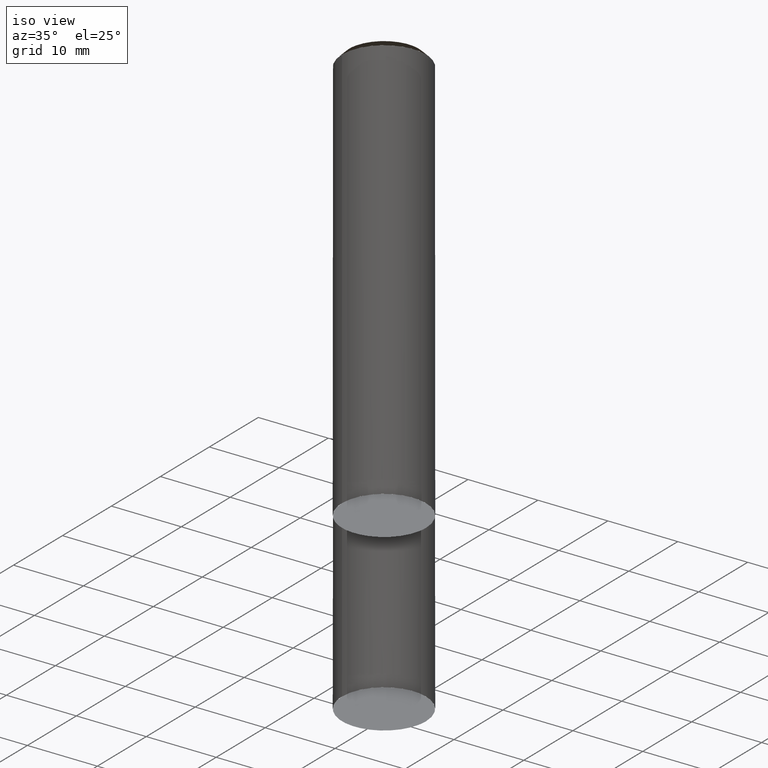
[diagram: clean part render]
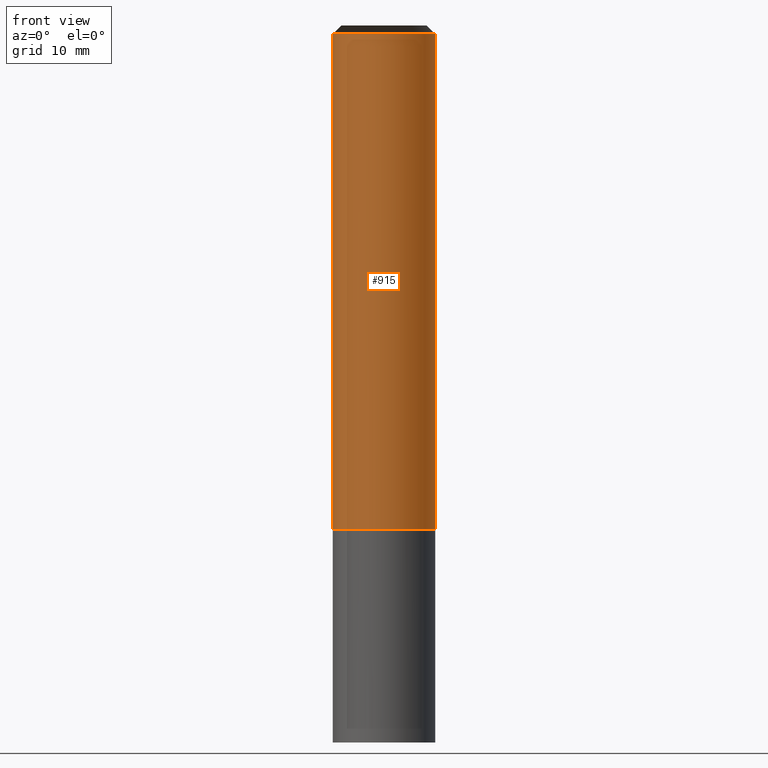
[diagram: tour spotlight — one face highlighted and labeled with its STEP entity id]
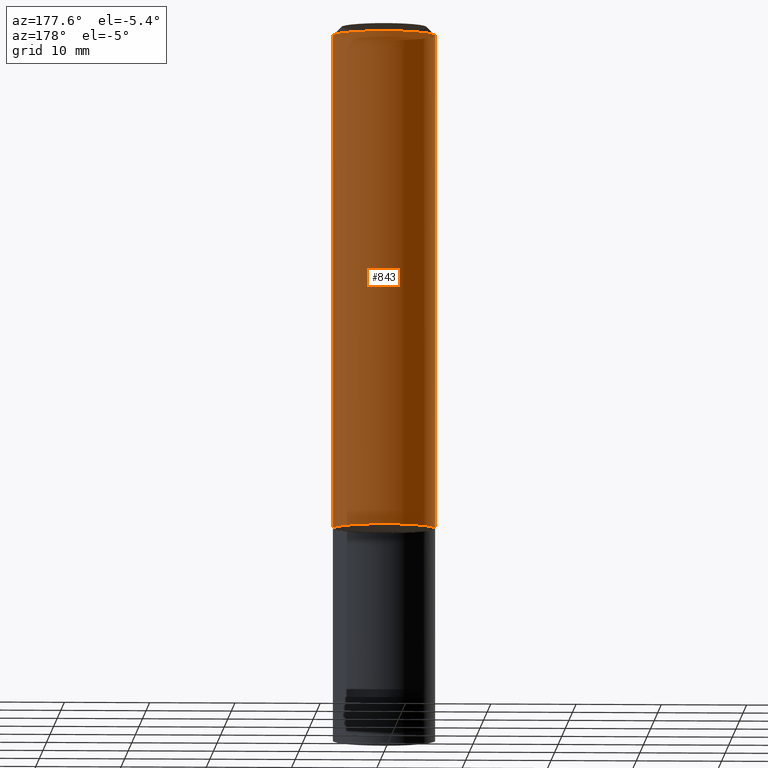
[diagram: tour spotlight — one face highlighted and labeled with its STEP entity id]
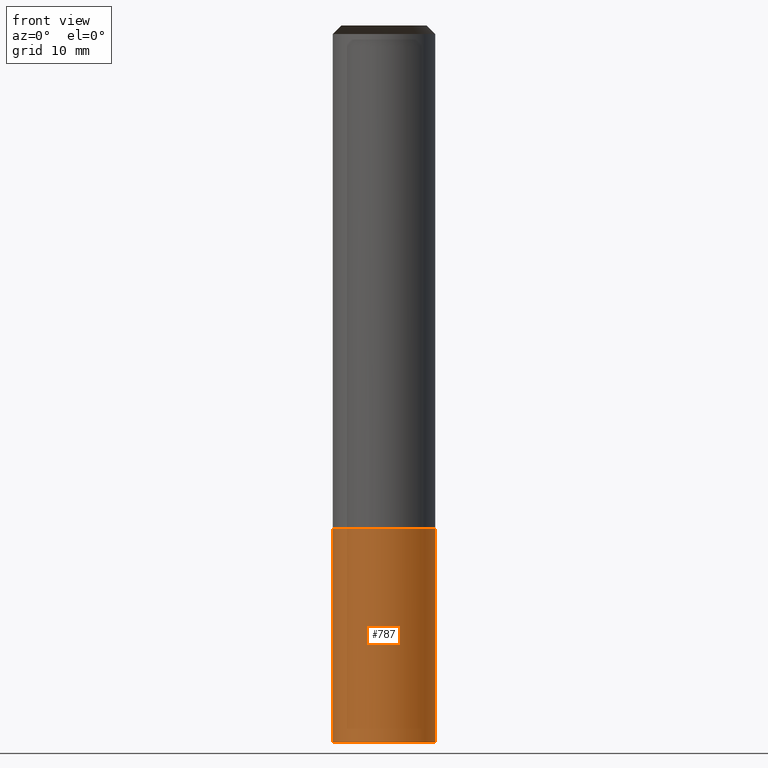
[diagram: tour spotlight — one face highlighted and labeled with its STEP entity id]
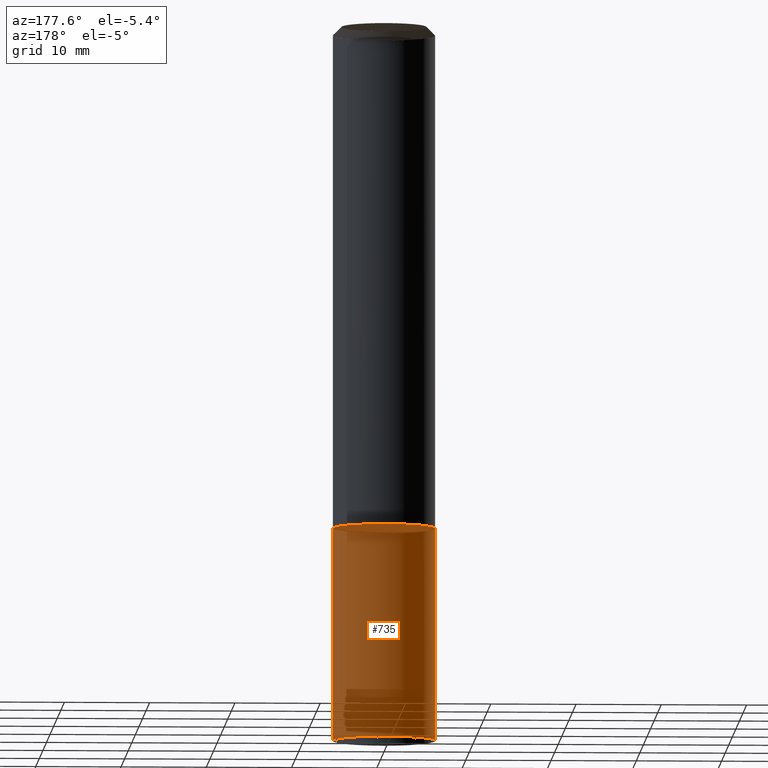
[diagram: tour spotlight — one face highlighted and labeled with its STEP entity id]
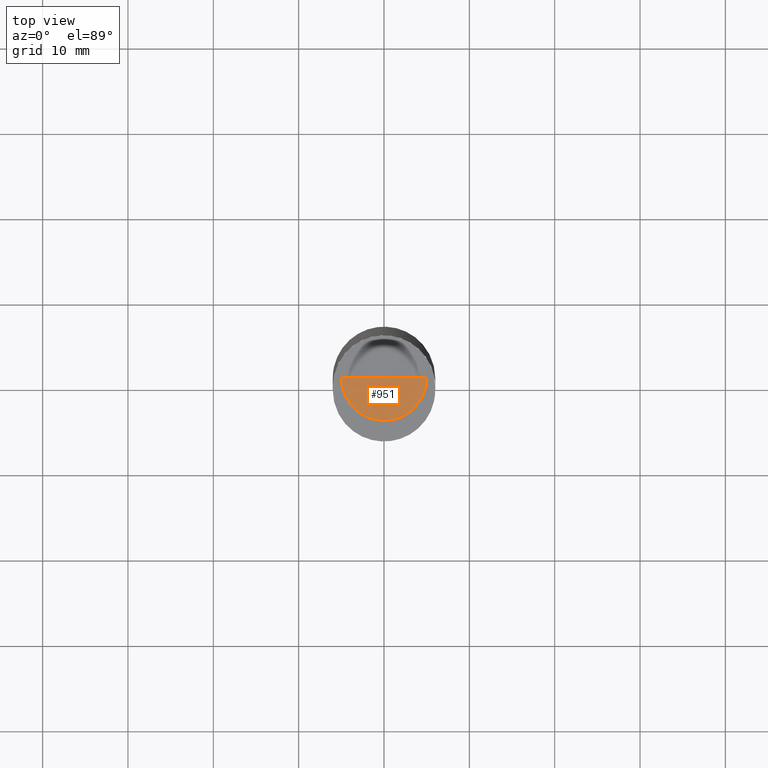
[diagram: tour spotlight — one face highlighted and labeled with its STEP entity id]
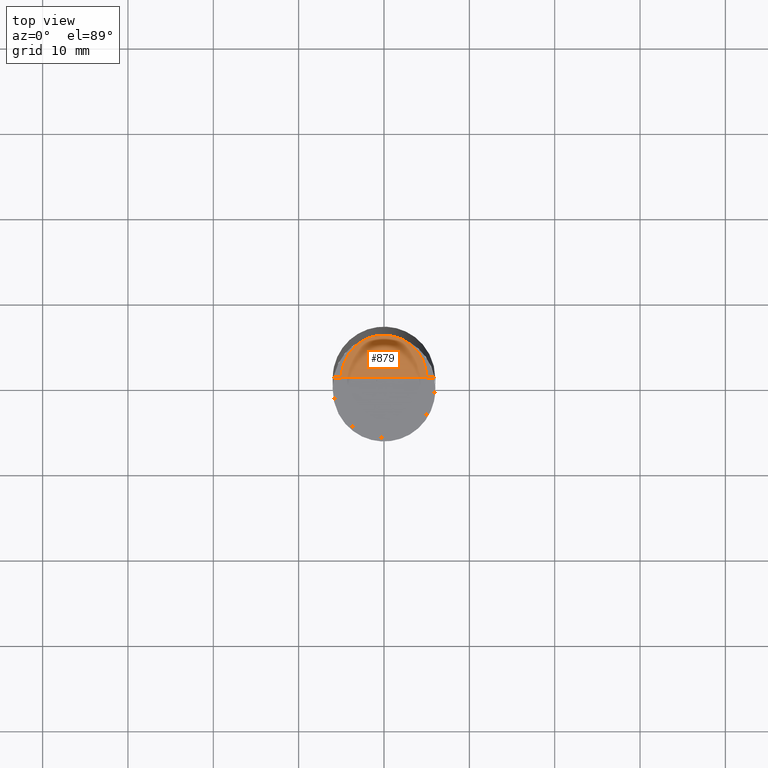
[diagram: tour spotlight — one face highlighted and labeled with its STEP entity id]
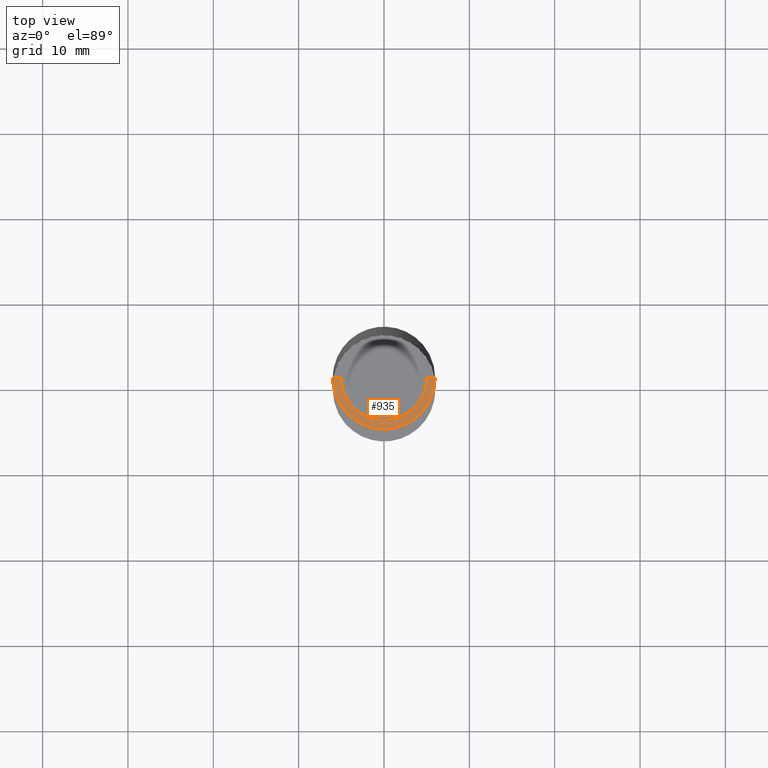
[diagram: tour spotlight — one face highlighted and labeled with its STEP entity id]
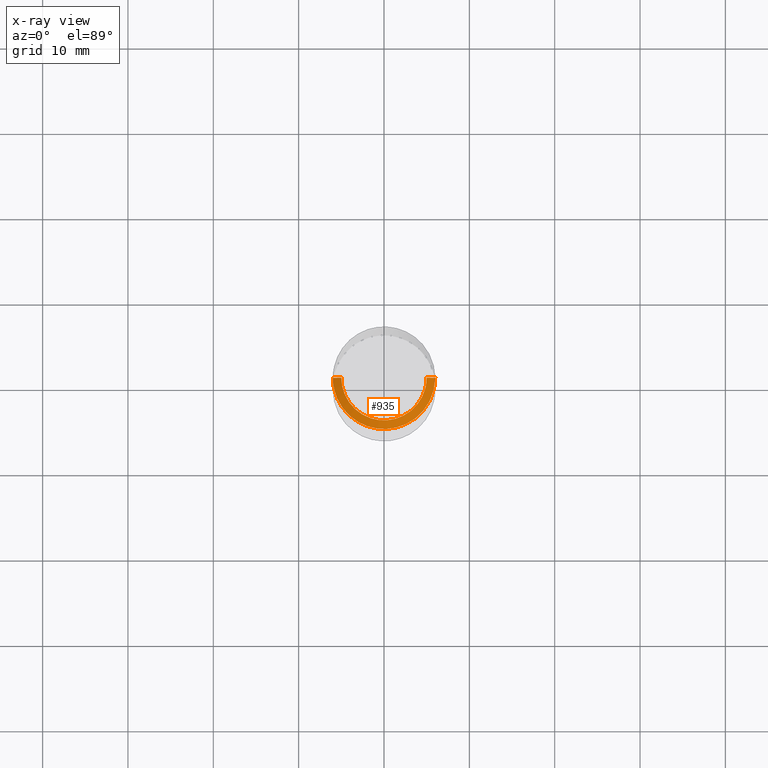
[diagram: x-ray of the same camera — body ghosted, this tour face saturated]
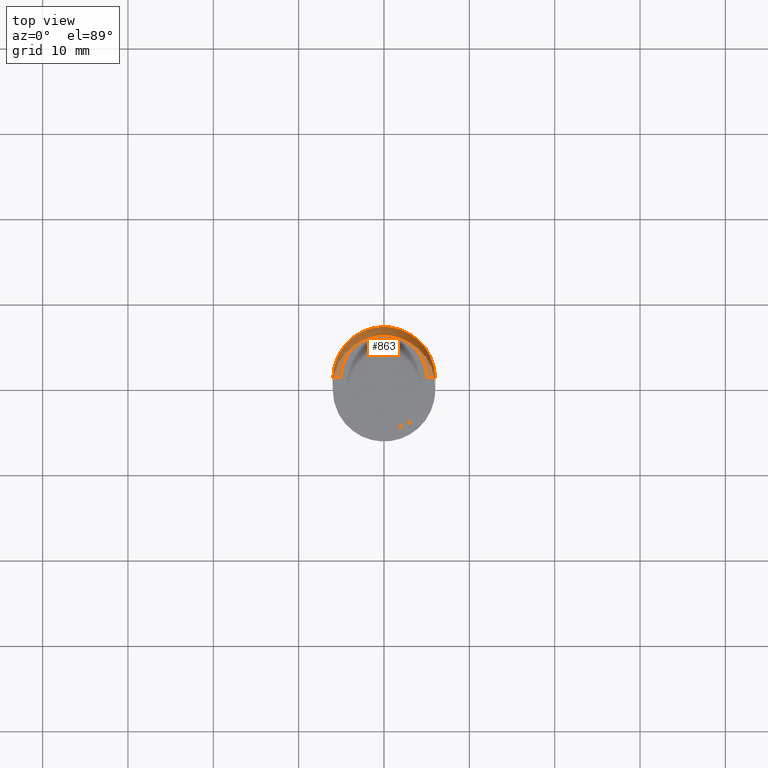
[diagram: tour spotlight — one face highlighted and labeled with its STEP entity id]
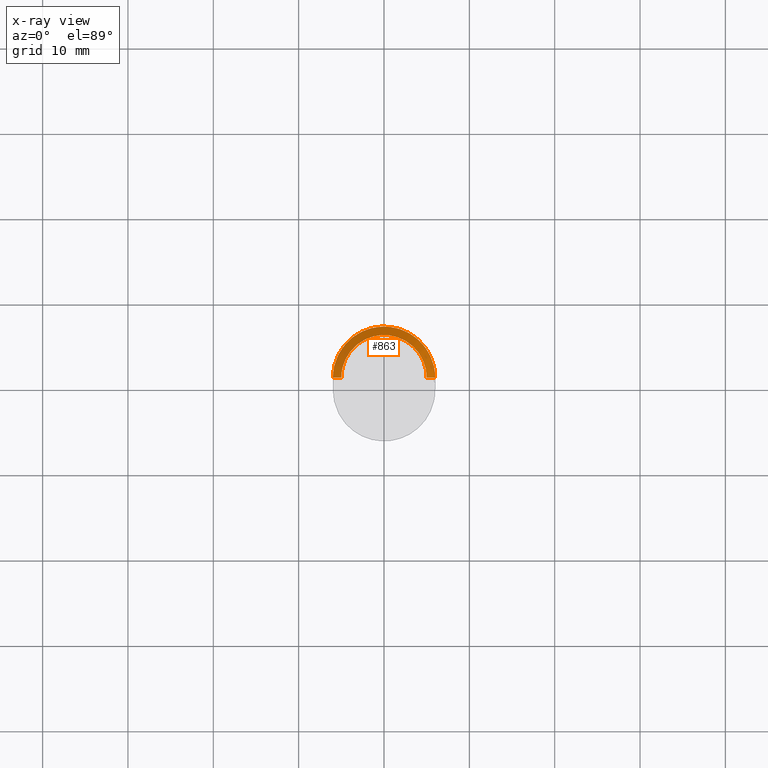
[diagram: x-ray of the same camera — body ghosted, this tour face saturated]
A machine part: a face-by-face anatomy tour. The part has 14 B-rep faces; the first image is the clean iso view, then the 8 largest visible faces are spotlighted one at a time (largest first), each with its STEP entity span.

Face 1 — front view, entity #915. In plain terms, the highlighted face is a freeform B-spline surface patch.
Definition (entity closure, byte-faithful):
#667=CARTESIAN_POINT('',(6.0,0.0,0.0));
#671=CARTESIAN_POINT('',(-6.0,0.0,0.0));
#675=CARTESIAN_POINT('',(-6.0,-6.0,0.0));
#676=CARTESIAN_POINT('',(0.0,-6.0,0.0));
#677=CARTESIAN_POINT('',(6.0,-6.0,0.0));
#678=CARTESIAN_POINT('',(6.0,0.0,58.0));
#682=CARTESIAN_POINT('',(-6.0,0.0,58.0));
#689=CARTESIAN_POINT('',(-6.0,-6.0,58.0));
#690=CARTESIAN_POINT('',(0.0,-6.0,58.0));
#691=CARTESIAN_POINT('',(6.0,-6.0,58.0));
#896=(
BOUNDED_SURFACE()
B_SPLINE_SURFACE(1,2,(
(#671,#675,#676,#677,#667),
(#682,#689,#690,#691,#678)
), .UNSPECIFIED.,.F.,.F.,.F.)
B_SPLINE_SURFACE_WITH_KNOTS((2,2),(3,2,3),(
0.0,1.0),(
0.0,0.5,1.0), .UNSPECIFIED.)
GEOMETRIC_REPRESENTATION_ITEM()
RATIONAL_B_SPLINE_SURFACE(((1.0,0.707106781187,1.0,0.707106781187,1.0),
(1.0,0.707106781187,1.0,0.707106781187,1.0)
))
REPRESENTATION_ITEM('')
SURFACE()
);
#897=(
BOUNDED_CURVE()
B_SPLINE_CURVE(2,(#667,#677,#676,#675,#671),.UNSPECIFIED.,.F.,.F.)
B_SPLINE_CURVE_WITH_KNOTS((3,2,3),
(0.0,0.5,1.0),.UNSPECIFIED.)
CURVE()
GEOMETRIC_REPRESENTATION_ITEM()
RATIONAL_B_SPLINE_CURVE((1.0,0.707106781187,1.0,0.707106781187,1.0))
REPRESENTATION_ITEM('')
);
#898=(
BOUNDED_CURVE()
B_SPLINE_CURVE(1,(#671,#682),.UNSPECIFIED.,.F.,.F.)
B_SPLINE_CURVE_WITH_KNOTS((2,2),
(0.0,1.0),.UNSPECIFIED.)
CURVE()
GEOMETRIC_REPRESENTATION_ITEM()
RATIONAL_B_SPLINE_CURVE((1.0,1.0))
REPRESENTATION_ITEM('')
);
#899=(
BOUNDED_CURVE()
B_SPLINE_CURVE(2,(#682,#689,#690,#691,#678),.UNSPECIFIED.,.F.,.F.)
B_SPLINE_CURVE_WITH_KNOTS((3,2,3),
(0.0,0.5,1.0),.UNSPECIFIED.)
CURVE()
GEOMETRIC_REPRESENTATION_ITEM()
RATIONAL_B_SPLINE_CURVE((1.0,0.707106781187,1.0,0.707106781187,1.0))
REPRESENTATION_ITEM('')
);
#900=(
BOUNDED_CURVE()
B_SPLINE_CURVE(1,(#678,#667),.UNSPECIFIED.,.F.,.F.)
B_SPLINE_CURVE_WITH_KNOTS((2,2),
(0.0,1.0),.UNSPECIFIED.)
CURVE()
GEOMETRIC_REPRESENTATION_ITEM()
RATIONAL_B_SPLINE_CURVE((1.0,1.0))
REPRESENTATION_ITEM('')
);
#901=VERTEX_POINT('',#667);
#902=VERTEX_POINT('',#671);
#903=VERTEX_POINT('',#678);
#904=VERTEX_POINT('',#682);
#905=EDGE_CURVE('',#901,#902,#897,.T.);
#906=EDGE_CURVE('',#902,#904,#898,.T.);
#907=EDGE_CURVE('',#904,#903,#899,.T.);
#908=EDGE_CURVE('',#903,#901,#900,.T.);
#909=ORIENTED_EDGE('',*,*,#905,.T.);
#910=ORIENTED_EDGE('',*,*,#906,.T.);
#911=ORIENTED_EDGE('',*,*,#907,.T.);
#912=ORIENTED_EDGE('',*,*,#908,.T.);
#913=EDGE_LOOP('',(#909,#910,#911,#912));
#914=FACE_OUTER_BOUND('',#913,.T.);
#915=ADVANCED_FACE('',(#914),#896,.T.);

Face 2 — auxiliary view, entity #843. In plain terms, the highlighted face is a freeform B-spline surface patch.
Definition (entity closure, byte-faithful):
#667=CARTESIAN_POINT('',(6.0,0.0,0.0));
#668=CARTESIAN_POINT('',(6.0,6.0,0.0));
#669=CARTESIAN_POINT('',(0.0,6.0,0.0));
#670=CARTESIAN_POINT('',(-6.0,6.0,0.0));
#671=CARTESIAN_POINT('',(-6.0,0.0,0.0));
#678=CARTESIAN_POINT('',(6.0,0.0,58.0));
#679=CARTESIAN_POINT('',(6.0,6.0,58.0));
#680=CARTESIAN_POINT('',(0.0,6.0,58.0));
#681=CARTESIAN_POINT('',(-6.0,6.0,58.0));
#682=CARTESIAN_POINT('',(-6.0,0.0,58.0));
#824=(
BOUNDED_SURFACE()
B_SPLINE_SURFACE(1,2,(
(#667,#668,#669,#670,#671),
(#678,#679,#680,#681,#682)
), .UNSPECIFIED.,.F.,.F.,.F.)
B_SPLINE_SURFACE_WITH_KNOTS((2,2),(3,2,3),(
0.0,1.0),(
0.0,0.5,1.0), .UNSPECIFIED.)
GEOMETRIC_REPRESENTATION_ITEM()
RATIONAL_B_SPLINE_SURFACE(((1.0,0.707106781187,1.0,0.707106781187,1.0),
(1.0,0.707106781187,1.0,0.707106781187,1.0)
))
REPRESENTATION_ITEM('')
SURFACE()
);
#825=(
BOUNDED_CURVE()
B_SPLINE_CURVE(2,(#671,#670,#669,#668,#667),.UNSPECIFIED.,.F.,.F.)
B_SPLINE_CURVE_WITH_KNOTS((3,2,3),
(0.0,0.5,1.0),.UNSPECIFIED.)
CURVE()
GEOMETRIC_REPRESENTATION_ITEM()
RATIONAL_B_SPLINE_CURVE((1.0,0.707106781187,1.0,0.707106781187,1.0))
REPRESENTATION_ITEM('')
);
#826=(
BOUNDED_CURVE()
B_SPLINE_CURVE(1,(#667,#678),.UNSPECIFIED.,.F.,.F.)
B_SPLINE_CURVE_WITH_KNOTS((2,2),
(0.0,1.0),.UNSPECIFIED.)
CURVE()
GEOMETRIC_REPRESENTATION_ITEM()
RATIONAL_B_SPLINE_CURVE((1.0,1.0))
REPRESENTATION_ITEM('')
);
#827=(
BOUNDED_CURVE()
B_SPLINE_CURVE(2,(#678,#679,#680,#681,#682),.UNSPECIFIED.,.F.,.F.)
B_SPLINE_CURVE_WITH_KNOTS((3,2,3),
(0.0,0.5,1.0),.UNSPECIFIED.)
CURVE()
GEOMETRIC_REPRESENTATION_ITEM()
RATIONAL_B_SPLINE_CURVE((1.0,0.707106781187,1.0,0.707106781187,1.0))
REPRESENTATION_ITEM('')
);
#828=(
BOUNDED_CURVE()
B_SPLINE_CURVE(1,(#682,#671),.UNSPECIFIED.,.F.,.F.)
B_SPLINE_CURVE_WITH_KNOTS((2,2),
(0.0,1.0),.UNSPECIFIED.)
CURVE()
GEOMETRIC_REPRESENTATION_ITEM()
RATIONAL_B_SPLINE_CURVE((1.0,1.0))
REPRESENTATION_ITEM('')
);
#829=VERTEX_POINT('',#667);
#830=VERTEX_POINT('',#671);
#831=VERTEX_POINT('',#678);
#832=VERTEX_POINT('',#682);
#833=EDGE_CURVE('',#830,#829,#825,.T.);
#834=EDGE_CURVE('',#829,#831,#826,.T.);
#835=EDGE_CURVE('',#831,#832,#827,.T.);
#836=EDGE_CURVE('',#832,#830,#828,.T.);
#837=ORIENTED_EDGE('',*,*,#833,.T.);
#838=ORIENTED_EDGE('',*,*,#834,.T.);
#839=ORIENTED_EDGE('',*,*,#835,.T.);
#840=ORIENTED_EDGE('',*,*,#836,.T.);
#841=EDGE_LOOP('',(#837,#838,#839,#840));
#842=FACE_OUTER_BOUND('',#841,.T.);
#843=ADVANCED_FACE('',(#842),#824,.T.);

Face 3 — front view, entity #787. In plain terms, the highlighted face is a freeform B-spline surface patch.
Definition (entity closure, byte-faithful):
#109=CARTESIAN_POINT('',(0.0,-6.0,-25.0));
#663=CARTESIAN_POINT('',(6.0,0.0,-25.0));
#666=CARTESIAN_POINT('',(-6.0,0.0,-25.0));
#667=CARTESIAN_POINT('',(6.0,0.0,0.0));
#671=CARTESIAN_POINT('',(-6.0,0.0,0.0));
#673=CARTESIAN_POINT('',(-6.0,-6.0,-25.0));
#674=CARTESIAN_POINT('',(6.0,-6.0,-25.0));
#675=CARTESIAN_POINT('',(-6.0,-6.0,0.0));
#676=CARTESIAN_POINT('',(0.0,-6.0,0.0));
#677=CARTESIAN_POINT('',(6.0,-6.0,0.0));
#768=(
BOUNDED_SURFACE()
B_SPLINE_SURFACE(1,2,(
(#666,#673,#109,#674,#663),
(#671,#675,#676,#677,#667)
), .UNSPECIFIED.,.F.,.F.,.F.)
B_SPLINE_SURFACE_WITH_KNOTS((2,2),(3,2,3),(
0.0,1.0),(
0.0,0.5,1.0), .UNSPECIFIED.)
GEOMETRIC_REPRESENTATION_ITEM()
RATIONAL_B_SPLINE_SURFACE(((1.0,0.707106781187,1.0,0.707106781187,1.0),
(1.0,0.707106781187,1.0,0.707106781187,1.0)
))
REPRESENTATION_ITEM('')
SURFACE()
);
#769=(
BOUNDED_CURVE()
B_SPLINE_CURVE(2,(#663,#674,#109,#673,#666),.UNSPECIFIED.,.F.,.F.)
B_SPLINE_CURVE_WITH_KNOTS((3,2,3),
(0.0,0.5,1.0),.UNSPECIFIED.)
CURVE()
GEOMETRIC_REPRESENTATION_ITEM()
RATIONAL_B_SPLINE_CURVE((1.0,0.707106781187,1.0,0.707106781187,1.0))
REPRESENTATION_ITEM('')
);
#770=(
BOUNDED_CURVE()
B_SPLINE_CURVE(1,(#666,#671),.UNSPECIFIED.,.F.,.F.)
B_SPLINE_CURVE_WITH_KNOTS((2,2),
(0.0,1.0),.UNSPECIFIED.)
CURVE()
GEOMETRIC_REPRESENTATION_ITEM()
RATIONAL_B_SPLINE_CURVE((1.0,1.0))
REPRESENTATION_ITEM('')
);
#771=(
BOUNDED_CURVE()
B_SPLINE_CURVE(2,(#671,#675,#676,#677,#667),.UNSPECIFIED.,.F.,.F.)
B_SPLINE_CURVE_WITH_KNOTS((3,2,3),
(0.0,0.5,1.0),.UNSPECIFIED.)
CURVE()
GEOMETRIC_REPRESENTATION_ITEM()
RATIONAL_B_SPLINE_CURVE((1.0,0.707106781187,1.0,0.707106781187,1.0))
REPRESENTATION_ITEM('')
);
#772=(
BOUNDED_CURVE()
B_SPLINE_CURVE(1,(#667,#663),.UNSPECIFIED.,.F.,.F.)
B_SPLINE_CURVE_WITH_KNOTS((2,2),
(0.0,1.0),.UNSPECIFIED.)
CURVE()
GEOMETRIC_REPRESENTATION_ITEM()
RATIONAL_B_SPLINE_CURVE((1.0,1.0))
REPRESENTATION_ITEM('')
);
#773=VERTEX_POINT('',#663);
#774=VERTEX_POINT('',#666);
#775=VERTEX_POINT('',#667);
#776=VERTEX_POINT('',#671);
#777=EDGE_CURVE('',#773,#774,#769,.T.);
#778=EDGE_CURVE('',#774,#776,#770,.T.);
#779=EDGE_CURVE('',#776,#775,#771,.T.);
#780=EDGE_CURVE('',#775,#773,#772,.T.);
#781=ORIENTED_EDGE('',*,*,#777,.T.);
#782=ORIENTED_EDGE('',*,*,#778,.T.);
#783=ORIENTED_EDGE('',*,*,#779,.T.);
#784=ORIENTED_EDGE('',*,*,#780,.T.);
#785=EDGE_LOOP('',(#781,#782,#783,#784));
#786=FACE_OUTER_BOUND('',#785,.T.);
#787=ADVANCED_FACE('',(#786),#768,.T.);

Face 4 — auxiliary view, entity #735. In plain terms, the highlighted face is a freeform B-spline surface patch.
Definition (entity closure, byte-faithful):
#410=CARTESIAN_POINT('',(0.0,6.0,-25.0));
#663=CARTESIAN_POINT('',(6.0,0.0,-25.0));
#664=CARTESIAN_POINT('',(6.0,6.0,-25.0));
#665=CARTESIAN_POINT('',(-6.0,6.0,-25.0));
#666=CARTESIAN_POINT('',(-6.0,0.0,-25.0));
#667=CARTESIAN_POINT('',(6.0,0.0,0.0));
#668=CARTESIAN_POINT('',(6.0,6.0,0.0));
#669=CARTESIAN_POINT('',(0.0,6.0,0.0));
#670=CARTESIAN_POINT('',(-6.0,6.0,0.0));
#671=CARTESIAN_POINT('',(-6.0,0.0,0.0));
#716=(
BOUNDED_SURFACE()
B_SPLINE_SURFACE(1,2,(
(#663,#664,#410,#665,#666),
(#667,#668,#669,#670,#671)
), .UNSPECIFIED.,.F.,.F.,.F.)
B_SPLINE_SURFACE_WITH_KNOTS((2,2),(3,2,3),(
0.0,1.0),(
0.0,0.5,1.0), .UNSPECIFIED.)
GEOMETRIC_REPRESENTATION_ITEM()
RATIONAL_B_SPLINE_SURFACE(((1.0,0.707106781187,1.0,0.707106781187,1.0),
(1.0,0.707106781187,1.0,0.707106781187,1.0)
))
REPRESENTATION_ITEM('')
SURFACE()
);
#717=(
BOUNDED_CURVE()
B_SPLINE_CURVE(2,(#666,#665,#410,#664,#663),.UNSPECIFIED.,.F.,.F.)
B_SPLINE_CURVE_WITH_KNOTS((3,2,3),
(0.0,0.5,1.0),.UNSPECIFIED.)
CURVE()
GEOMETRIC_REPRESENTATION_ITEM()
RATIONAL_B_SPLINE_CURVE((1.0,0.707106781187,1.0,0.707106781187,1.0))
REPRESENTATION_ITEM('')
);
#718=(
BOUNDED_CURVE()
B_SPLINE_CURVE(1,(#663,#667),.UNSPECIFIED.,.F.,.F.)
B_SPLINE_CURVE_WITH_KNOTS((2,2),
(0.0,1.0),.UNSPECIFIED.)
CURVE()
GEOMETRIC_REPRESENTATION_ITEM()
RATIONAL_B_SPLINE_CURVE((1.0,1.0))
REPRESENTATION_ITEM('')
);
#719=(
BOUNDED_CURVE()
B_SPLINE_CURVE(2,(#667,#668,#669,#670,#671),.UNSPECIFIED.,.F.,.F.)
B_SPLINE_CURVE_WITH_KNOTS((3,2,3),
(0.0,0.5,1.0),.UNSPECIFIED.)
CURVE()
GEOMETRIC_REPRESENTATION_ITEM()
RATIONAL_B_SPLINE_CURVE((1.0,0.707106781187,1.0,0.707106781187,1.0))
REPRESENTATION_ITEM('')
);
#720=(
BOUNDED_CURVE()
B_SPLINE_CURVE(1,(#671,#666),.UNSPECIFIED.,.F.,.F.)
B_SPLINE_CURVE_WITH_KNOTS((2,2),
(0.0,1.0),.UNSPECIFIED.)
CURVE()
GEOMETRIC_REPRESENTATION_ITEM()
RATIONAL_B_SPLINE_CURVE((1.0,1.0))
REPRESENTATION_ITEM('')
);
#721=VERTEX_POINT('',#663);
#722=VERTEX_POINT('',#666);
#723=VERTEX_POINT('',#667);
#724=VERTEX_POINT('',#671);
#725=EDGE_CURVE('',#722,#721,#717,.T.);
#726=EDGE_CURVE('',#721,#723,#718,.T.);
#727=EDGE_CURVE('',#723,#724,#719,.T.);
#728=EDGE_CURVE('',#724,#722,#720,.T.);
#729=ORIENTED_EDGE('',*,*,#725,.T.);
#730=ORIENTED_EDGE('',*,*,#726,.T.);
#731=ORIENTED_EDGE('',*,*,#727,.T.);
#732=ORIENTED_EDGE('',*,*,#728,.T.);
#733=EDGE_LOOP('',(#729,#730,#731,#732));
#734=FACE_OUTER_BOUND('',#733,.T.);
#735=ADVANCED_FACE('',(#734),#716,.T.);

Face 5 — top view, entity #951. In plain terms, the highlighted face is a freeform B-spline surface patch.
Definition (entity closure, byte-faithful):
#683=CARTESIAN_POINT('',(5.0,0.0,59.0));
#687=CARTESIAN_POINT('',(-5.0,0.0,59.0));
#688=CARTESIAN_POINT('',(0.0,0.0,59.0));
#692=CARTESIAN_POINT('',(-5.0,-5.0,59.0));
#693=CARTESIAN_POINT('',(0.0,-5.0,59.0));
#694=CARTESIAN_POINT('',(5.0,-5.0,59.0));
#936=(
BOUNDED_SURFACE()
B_SPLINE_SURFACE(1,2,(
(#687,#692,#693,#694,#683),
(#688,#688,#688,#688,#688)
), .UNSPECIFIED.,.F.,.F.,.F.)
B_SPLINE_SURFACE_WITH_KNOTS((2,2),(3,2,3),(
0.0,1.0),(
0.0,0.5,1.0), .UNSPECIFIED.)
GEOMETRIC_REPRESENTATION_ITEM()
RATIONAL_B_SPLINE_SURFACE(((1.0,0.707106781187,1.0,0.707106781187,1.0),
(1.0,0.707106781187,1.0,0.707106781187,1.0)
))
REPRESENTATION_ITEM('')
SURFACE()
);
#937=(
BOUNDED_CURVE()
B_SPLINE_CURVE(2,(#683,#694,#693,#692,#687),.UNSPECIFIED.,.F.,.F.)
B_SPLINE_CURVE_WITH_KNOTS((3,2,3),
(0.0,0.5,1.0),.UNSPECIFIED.)
CURVE()
GEOMETRIC_REPRESENTATION_ITEM()
RATIONAL_B_SPLINE_CURVE((1.0,0.707106781187,1.0,0.707106781187,1.0))
REPRESENTATION_ITEM('')
);
#938=(
BOUNDED_CURVE()
B_SPLINE_CURVE(1,(#687,#688),.UNSPECIFIED.,.F.,.F.)
B_SPLINE_CURVE_WITH_KNOTS((2,2),
(0.0,1.0),.UNSPECIFIED.)
CURVE()
GEOMETRIC_REPRESENTATION_ITEM()
RATIONAL_B_SPLINE_CURVE((1.0,1.0))
REPRESENTATION_ITEM('')
);
#939=(
BOUNDED_CURVE()
B_SPLINE_CURVE(1,(#688,#683),.UNSPECIFIED.,.F.,.F.)
B_SPLINE_CURVE_WITH_KNOTS((2,2),
(0.0,1.0),.UNSPECIFIED.)
CURVE()
GEOMETRIC_REPRESENTATION_ITEM()
RATIONAL_B_SPLINE_CURVE((1.0,1.0))
REPRESENTATION_ITEM('')
);
#940=VERTEX_POINT('',#683);
#941=VERTEX_POINT('',#687);
#942=VERTEX_POINT('',#688);
#943=EDGE_CURVE('',#940,#941,#937,.T.);
#944=EDGE_CURVE('',#941,#942,#938,.T.);
#945=EDGE_CURVE('',#942,#940,#939,.T.);
#946=ORIENTED_EDGE('',*,*,#943,.T.);
#947=ORIENTED_EDGE('',*,*,#944,.T.);
#948=ORIENTED_EDGE('',*,*,#945,.T.);
#949=EDGE_LOOP('',(#946,#947,#948));
#950=FACE_OUTER_BOUND('',#949,.T.);
#951=ADVANCED_FACE('',(#950),#936,.T.);

Face 6 — top view, entity #879. In plain terms, the highlighted face is a freeform B-spline surface patch.
Definition (entity closure, byte-faithful):
#683=CARTESIAN_POINT('',(5.0,0.0,59.0));
#684=CARTESIAN_POINT('',(5.0,5.0,59.0));
#685=CARTESIAN_POINT('',(0.0,5.0,59.0));
#686=CARTESIAN_POINT('',(-5.0,5.0,59.0));
#687=CARTESIAN_POINT('',(-5.0,0.0,59.0));
#688=CARTESIAN_POINT('',(0.0,0.0,59.0));
#864=(
BOUNDED_SURFACE()
B_SPLINE_SURFACE(1,2,(
(#683,#684,#685,#686,#687),
(#688,#688,#688,#688,#688)
), .UNSPECIFIED.,.F.,.F.,.F.)
B_SPLINE_SURFACE_WITH_KNOTS((2,2),(3,2,3),(
0.0,1.0),(
0.0,0.5,1.0), .UNSPECIFIED.)
GEOMETRIC_REPRESENTATION_ITEM()
RATIONAL_B_SPLINE_SURFACE(((1.0,0.707106781187,1.0,0.707106781187,1.0),
(1.0,0.707106781187,1.0,0.707106781187,1.0)
))
REPRESENTATION_ITEM('')
SURFACE()
);
#865=(
BOUNDED_CURVE()
B_SPLINE_CURVE(2,(#687,#686,#685,#684,#683),.UNSPECIFIED.,.F.,.F.)
B_SPLINE_CURVE_WITH_KNOTS((3,2,3),
(0.0,0.5,1.0),.UNSPECIFIED.)
CURVE()
GEOMETRIC_REPRESENTATION_ITEM()
RATIONAL_B_SPLINE_CURVE((1.0,0.707106781187,1.0,0.707106781187,1.0))
REPRESENTATION_ITEM('')
);
#866=(
BOUNDED_CURVE()
B_SPLINE_CURVE(1,(#683,#688),.UNSPECIFIED.,.F.,.F.)
B_SPLINE_CURVE_WITH_KNOTS((2,2),
(0.0,1.0),.UNSPECIFIED.)
CURVE()
GEOMETRIC_REPRESENTATION_ITEM()
RATIONAL_B_SPLINE_CURVE((1.0,1.0))
REPRESENTATION_ITEM('')
);
#867=(
BOUNDED_CURVE()
B_SPLINE_CURVE(1,(#688,#687),.UNSPECIFIED.,.F.,.F.)
B_SPLINE_CURVE_WITH_KNOTS((2,2),
(0.0,1.0),.UNSPECIFIED.)
CURVE()
GEOMETRIC_REPRESENTATION_ITEM()
RATIONAL_B_SPLINE_CURVE((1.0,1.0))
REPRESENTATION_ITEM('')
);
#868=VERTEX_POINT('',#683);
#869=VERTEX_POINT('',#687);
#870=VERTEX_POINT('',#688);
#871=EDGE_CURVE('',#869,#868,#865,.T.);
#872=EDGE_CURVE('',#868,#870,#866,.T.);
#873=EDGE_CURVE('',#870,#869,#867,.T.);
#874=ORIENTED_EDGE('',*,*,#871,.T.);
#875=ORIENTED_EDGE('',*,*,#872,.T.);
#876=ORIENTED_EDGE('',*,*,#873,.T.);
#877=EDGE_LOOP('',(#874,#875,#876));
#878=FACE_OUTER_BOUND('',#877,.T.);
#879=ADVANCED_FACE('',(#878),#864,.T.);

Face 7 — top view, entity #935. An x-ray twin of the same camera follows (body ghosted, this face saturated) — the face is partly hidden behind the body. In plain terms, the highlighted face is a freeform B-spline surface patch.
Definition (entity closure, byte-faithful):
#678=CARTESIAN_POINT('',(6.0,0.0,58.0));
#682=CARTESIAN_POINT('',(-6.0,0.0,58.0));
#683=CARTESIAN_POINT('',(5.0,0.0,59.0));
#687=CARTESIAN_POINT('',(-5.0,0.0,59.0));
#689=CARTESIAN_POINT('',(-6.0,-6.0,58.0));
#690=CARTESIAN_POINT('',(0.0,-6.0,58.0));
#691=CARTESIAN_POINT('',(6.0,-6.0,58.0));
#692=CARTESIAN_POINT('',(-5.0,-5.0,59.0));
#693=CARTESIAN_POINT('',(0.0,-5.0,59.0));
#694=CARTESIAN_POINT('',(5.0,-5.0,59.0));
#916=(
BOUNDED_SURFACE()
B_SPLINE_SURFACE(1,2,(
(#682,#689,#690,#691,#678),
(#687,#692,#693,#694,#683)
), .UNSPECIFIED.,.F.,.F.,.F.)
B_SPLINE_SURFACE_WITH_KNOTS((2,2),(3,2,3),(
0.0,1.0),(
0.0,0.5,1.0), .UNSPECIFIED.)
GEOMETRIC_REPRESENTATION_ITEM()
RATIONAL_B_SPLINE_SURFACE(((1.0,0.707106781187,1.0,0.707106781187,1.0),
(1.0,0.707106781187,1.0,0.707106781187,1.0)
))
REPRESENTATION_ITEM('')
SURFACE()
);
#917=(
BOUNDED_CURVE()
B_SPLINE_CURVE(2,(#678,#691,#690,#689,#682),.UNSPECIFIED.,.F.,.F.)
B_SPLINE_CURVE_WITH_KNOTS((3,2,3),
(0.0,0.5,1.0),.UNSPECIFIED.)
CURVE()
GEOMETRIC_REPRESENTATION_ITEM()
RATIONAL_B_SPLINE_CURVE((1.0,0.707106781187,1.0,0.707106781187,1.0))
REPRESENTATION_ITEM('')
);
#918=(
BOUNDED_CURVE()
B_SPLINE_CURVE(1,(#682,#687),.UNSPECIFIED.,.F.,.F.)
B_SPLINE_CURVE_WITH_KNOTS((2,2),
(0.0,1.0),.UNSPECIFIED.)
CURVE()
GEOMETRIC_REPRESENTATION_ITEM()
RATIONAL_B_SPLINE_CURVE((1.0,1.0))
REPRESENTATION_ITEM('')
);
#919=(
BOUNDED_CURVE()
B_SPLINE_CURVE(2,(#687,#692,#693,#694,#683),.UNSPECIFIED.,.F.,.F.)
B_SPLINE_CURVE_WITH_KNOTS((3,2,3),
(0.0,0.5,1.0),.UNSPECIFIED.)
CURVE()
GEOMETRIC_REPRESENTATION_ITEM()
RATIONAL_B_SPLINE_CURVE((1.0,0.707106781187,1.0,0.707106781187,1.0))
REPRESENTATION_ITEM('')
);
#920=(
BOUNDED_CURVE()
B_SPLINE_CURVE(1,(#683,#678),.UNSPECIFIED.,.F.,.F.)
B_SPLINE_CURVE_WITH_KNOTS((2,2),
(0.0,1.0),.UNSPECIFIED.)
CURVE()
GEOMETRIC_REPRESENTATION_ITEM()
RATIONAL_B_SPLINE_CURVE((1.0,1.0))
REPRESENTATION_ITEM('')
);
#921=VERTEX_POINT('',#678);
#922=VERTEX_POINT('',#682);
#923=VERTEX_POINT('',#683);
#924=VERTEX_POINT('',#687);
#925=EDGE_CURVE('',#921,#922,#917,.T.);
#926=EDGE_CURVE('',#922,#924,#918,.T.);
#927=EDGE_CURVE('',#924,#923,#919,.T.);
#928=EDGE_CURVE('',#923,#921,#920,.T.);
#929=ORIENTED_EDGE('',*,*,#925,.T.);
#930=ORIENTED_EDGE('',*,*,#926,.T.);
#931=ORIENTED_EDGE('',*,*,#927,.T.);
#932=ORIENTED_EDGE('',*,*,#928,.T.);
#933=EDGE_LOOP('',(#929,#930,#931,#932));
#934=FACE_OUTER_BOUND('',#933,.T.);
#935=ADVANCED_FACE('',(#934),#916,.T.);

Face 8 — top view, entity #863. An x-ray twin of the same camera follows (body ghosted, this face saturated) — the face is partly hidden behind the body. In plain terms, the highlighted face is a freeform B-spline surface patch.
Definition (entity closure, byte-faithful):
#678=CARTESIAN_POINT('',(6.0,0.0,58.0));
#679=CARTESIAN_POINT('',(6.0,6.0,58.0));
#680=CARTESIAN_POINT('',(0.0,6.0,58.0));
#681=CARTESIAN_POINT('',(-6.0,6.0,58.0));
#682=CARTESIAN_POINT('',(-6.0,0.0,58.0));
#683=CARTESIAN_POINT('',(5.0,0.0,59.0));
#684=CARTESIAN_POINT('',(5.0,5.0,59.0));
#685=CARTESIAN_POINT('',(0.0,5.0,59.0));
#686=CARTESIAN_POINT('',(-5.0,5.0,59.0));
#687=CARTESIAN_POINT('',(-5.0,0.0,59.0));
#844=(
BOUNDED_SURFACE()
B_SPLINE_SURFACE(1,2,(
(#678,#679,#680,#681,#682),
(#683,#684,#685,#686,#687)
), .UNSPECIFIED.,.F.,.F.,.F.)
B_SPLINE_SURFACE_WITH_KNOTS((2,2),(3,2,3),(
0.0,1.0),(
0.0,0.5,1.0), .UNSPECIFIED.)
GEOMETRIC_REPRESENTATION_ITEM()
RATIONAL_B_SPLINE_SURFACE(((1.0,0.707106781187,1.0,0.707106781187,1.0),
(1.0,0.707106781187,1.0,0.707106781187,1.0)
))
REPRESENTATION_ITEM('')
SURFACE()
);
#845=(
BOUNDED_CURVE()
B_SPLINE_CURVE(2,(#682,#681,#680,#679,#678),.UNSPECIFIED.,.F.,.F.)
B_SPLINE_CURVE_WITH_KNOTS((3,2,3),
(0.0,0.5,1.0),.UNSPECIFIED.)
CURVE()
GEOMETRIC_REPRESENTATION_ITEM()
RATIONAL_B_SPLINE_CURVE((1.0,0.707106781187,1.0,0.707106781187,1.0))
REPRESENTATION_ITEM('')
);
#846=(
BOUNDED_CURVE()
B_SPLINE_CURVE(1,(#678,#683),.UNSPECIFIED.,.F.,.F.)
B_SPLINE_CURVE_WITH_KNOTS((2,2),
(0.0,1.0),.UNSPECIFIED.)
CURVE()
GEOMETRIC_REPRESENTATION_ITEM()
RATIONAL_B_SPLINE_CURVE((1.0,1.0))
REPRESENTATION_ITEM('')
);
#847=(
BOUNDED_CURVE()
B_SPLINE_CURVE(2,(#683,#684,#685,#686,#687),.UNSPECIFIED.,.F.,.F.)
B_SPLINE_CURVE_WITH_KNOTS((3,2,3),
(0.0,0.5,1.0),.UNSPECIFIED.)
CURVE()
GEOMETRIC_REPRESENTATION_ITEM()
RATIONAL_B_SPLINE_CURVE((1.0,0.707106781187,1.0,0.707106781187,1.0))
REPRESENTATION_ITEM('')
);
#848=(
BOUNDED_CURVE()
B_SPLINE_CURVE(1,(#687,#682),.UNSPECIFIED.,.F.,.F.)
B_SPLINE_CURVE_WITH_KNOTS((2,2),
(0.0,1.0),.UNSPECIFIED.)
CURVE()
GEOMETRIC_REPRESENTATION_ITEM()
RATIONAL_B_SPLINE_CURVE((1.0,1.0))
REPRESENTATION_ITEM('')
);
#849=VERTEX_POINT('',#678);
#850=VERTEX_POINT('',#682);
#851=VERTEX_POINT('',#683);
#852=VERTEX_POINT('',#687);
#853=EDGE_CURVE('',#850,#849,#845,.T.);
#854=EDGE_CURVE('',#849,#851,#846,.T.);
#855=EDGE_CURVE('',#851,#852,#847,.T.);
#856=EDGE_CURVE('',#852,#850,#848,.T.);
#857=ORIENTED_EDGE('',*,*,#853,.T.);
#858=ORIENTED_EDGE('',*,*,#854,.T.);
#859=ORIENTED_EDGE('',*,*,#855,.T.);
#860=ORIENTED_EDGE('',*,*,#856,.T.);
#861=EDGE_LOOP('',(#857,#858,#859,#860));
#862=FACE_OUTER_BOUND('',#861,.T.);
#863=ADVANCED_FACE('',(#862),#844,.T.);